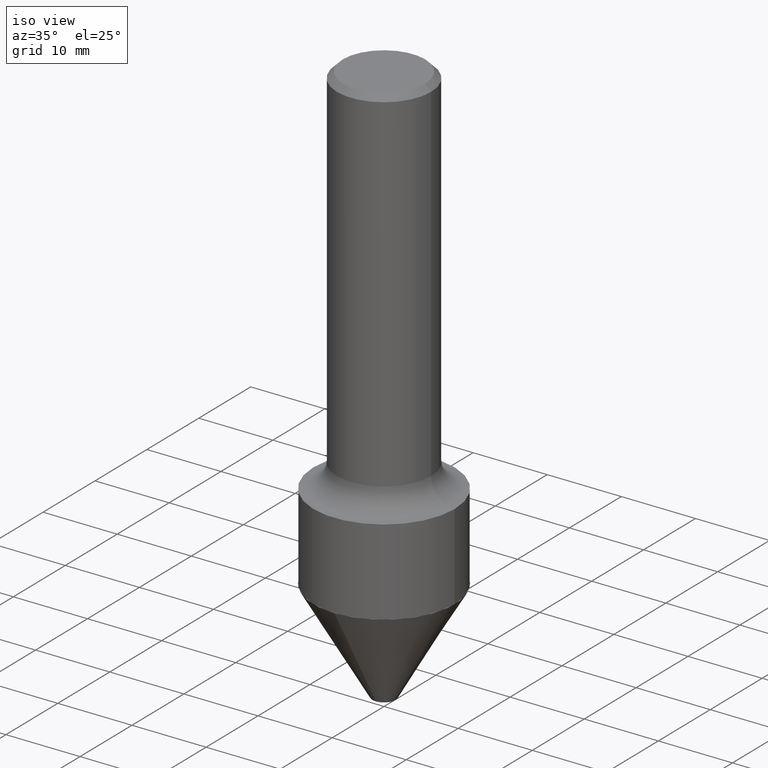
[diagram: clean part render]
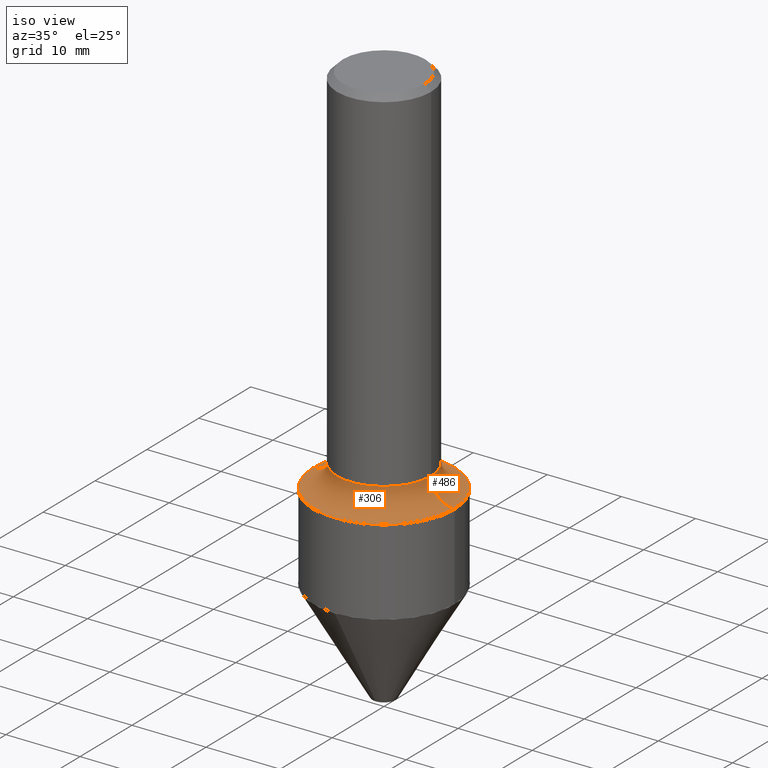
[diagram: same view with one multi-face feature highlighted, each face labeled with its STEP entity id]
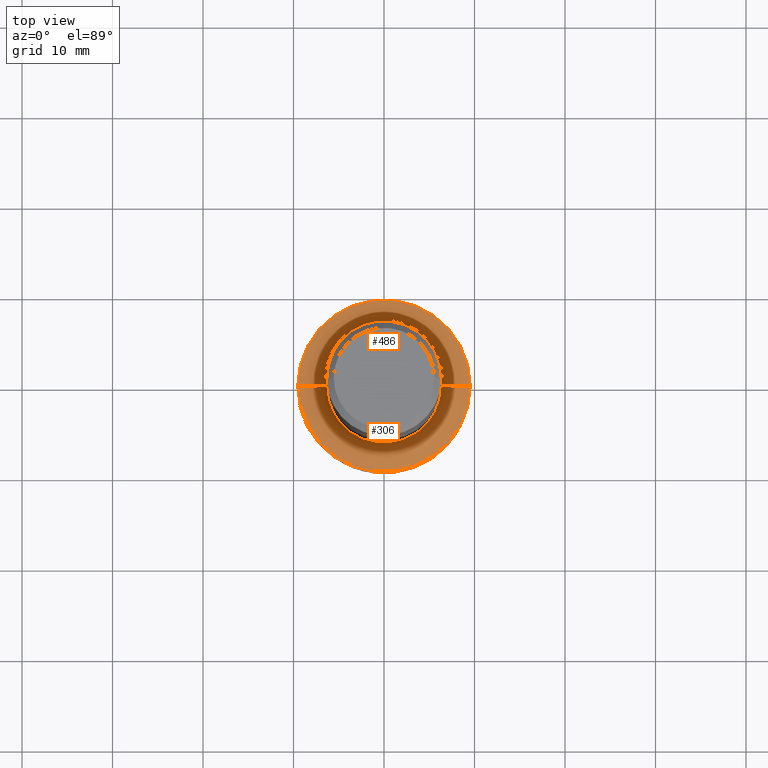
[diagram: same view with one multi-face feature highlighted, each face labeled with its STEP entity id]
A machine part, iso view. The highlighted faces form ONE feature: a constant-radius fillet chain: 2 tangent blend faces with common blend radius 3.175 mm. The faces share edges in the B-rep.
A second angle (top view) of the same feature is appended — it is thin or edge-on in the first view.
Their STEP definitions:
[1] entity #486 (Torus):
#11 = DIRECTION ( 'NONE',  ( 1.000000000000000000, -6.982962677686266711E-15, 4.883557194083112901E-29 ) ) ;
#14 = VERTEX_POINT ( 'NONE', #270 ) ;
#16 = DIRECTION ( 'NONE',  ( 7.105427357601001859E-15, 1.000000000000000000, -3.491481338843145583E-15 ) ) ;
#20 = DIRECTION ( 'NONE',  ( -1.000000000000000000, 7.105427357601001859E-15, 0.000000000000000000 ) ) ;
#42 = ORIENTED_EDGE ( 'NONE', *, *, #209, .T. ) ;
#43 = AXIS2_PLACEMENT_3D ( 'NONE', #138, #271, #350 ) ;
#57 = AXIS2_PLACEMENT_3D ( 'NONE', #471, #192, #11 ) ;
#71 = EDGE_CURVE ( 'NONE', #14, #511, #371, .T. ) ;
#82 = CIRCLE ( 'NONE', #43, 0.1249999999999998335 ) ;
#126 = VERTEX_POINT ( 'NONE', #335 ) ;
#134 = CIRCLE ( 'NONE', #327, 0.2500000000000002220 ) ;
#138 = CARTESIAN_POINT ( 'NONE',  ( 0.3750000000000000555, -9.165138514463248723E-15, -1.875000000000000444 ) ) ;
#152 = DIRECTION ( 'NONE',  ( -2.445468806185136597E-29, 3.491481338843145583E-15, 1.000000000000000000 ) ) ;
#186 = EDGE_LOOP ( 'NONE', ( #221, #281, #42, #387 ) ) ;
#187 = AXIS2_PLACEMENT_3D ( 'NONE', #222, #16, #20 ) ;
#190 = FACE_OUTER_BOUND ( 'NONE', #186, .T. ) ;
#192 = DIRECTION ( 'NONE',  ( -2.445468806185136597E-29, 3.491481338843145583E-15, 1.000000000000000000 ) ) ;
#203 = DIRECTION ( 'NONE',  ( 1.000000000000000000, -6.982962677686268288E-15, 0.000000000000000000 ) ) ;
#209 = EDGE_CURVE ( 'NONE', #307, #14, #82, .T. ) ;
#221 = ORIENTED_EDGE ( 'NONE', *, *, #356, .F. ) ;
#222 = CARTESIAN_POINT ( 'NONE',  ( -0.3750000000000000555, -3.881992251230523799E-15, -1.875000000000000444 ) ) ;
#253 = CARTESIAN_POINT ( 'NONE',  ( 4.585254011597131679E-29, -6.546527510330899496E-15, -1.875000000000000444 ) ) ;
#257 = DIRECTION ( 'NONE',  ( 1.000000000000000000, -6.982962677686266711E-15, 0.000000000000000000 ) ) ;
#270 = CARTESIAN_POINT ( 'NONE',  ( 0.3750000000000000555, -9.601573681818641971E-15, -2.000000000000000444 ) ) ;
#271 = DIRECTION ( 'NONE',  ( -6.982962677686266711E-15, -1.000000000000000000, 3.491481338843145583E-15 ) ) ;
#281 = ORIENTED_EDGE ( 'NONE', *, *, #404, .F. ) ;
#283 = AXIS2_PLACEMENT_3D ( 'NONE', #491, #152, #257 ) ;
#291 = TOROIDAL_SURFACE ( 'NONE', #57, 0.3750000000000000555, 0.1249999999999998473 ) ;
#297 = DIRECTION ( 'NONE',  ( -2.445468806185136597E-29, 3.491481338843145583E-15, 1.000000000000000000 ) ) ;
#307 = VERTEX_POINT ( 'NONE', #505 ) ;
#313 = CIRCLE ( 'NONE', #187, 0.1249999999999998335 ) ;
#327 = AXIS2_PLACEMENT_3D ( 'NONE', #253, #297, #203 ) ;
#335 = CARTESIAN_POINT ( 'NONE',  ( -0.2500000000000002776, -4.544299044758281461E-15, -1.875000000000000444 ) ) ;
#350 = DIRECTION ( 'NONE',  ( 1.000000000000000000, -6.982962677686272233E-15, 0.000000000000000000 ) ) ;
#356 = EDGE_CURVE ( 'NONE', #126, #511, #313, .T. ) ;
#371 = CIRCLE ( 'NONE', #283, 0.3750000000000000555 ) ;
#387 = ORIENTED_EDGE ( 'NONE', *, *, #71, .T. ) ;
#404 = EDGE_CURVE ( 'NONE', #307, #126, #134, .T. ) ;
#461 = CARTESIAN_POINT ( 'NONE',  ( -0.3750000000000000555, -4.318427418585916257E-15, -2.000000000000000444 ) ) ;
#471 = CARTESIAN_POINT ( 'NONE',  ( 4.585254011597131679E-29, -6.546527510330899496E-15, -1.875000000000000444 ) ) ;
#486 = ADVANCED_FACE ( 'NONE', ( #190 ), #291, .F. ) ;
#491 = CARTESIAN_POINT ( 'NONE',  ( 4.890937612370273754E-29, -6.982962677686291954E-15, -2.000000000000000444 ) ) ;
#505 = CARTESIAN_POINT ( 'NONE',  ( 0.2500000000000002220, -8.292268179752468540E-15, -1.875000000000000444 ) ) ;
#511 = VERTEX_POINT ( 'NONE', #461 ) ;
[2] entity #306 (Torus):
#14 = VERTEX_POINT ( 'NONE', #270 ) ;
#16 = DIRECTION ( 'NONE',  ( 7.105427357601001859E-15, 1.000000000000000000, -3.491481338843145583E-15 ) ) ;
#19 = EDGE_CURVE ( 'NONE', #511, #14, #169, .T. ) ;
#20 = DIRECTION ( 'NONE',  ( -1.000000000000000000, 7.105427357601001859E-15, 0.000000000000000000 ) ) ;
#43 = AXIS2_PLACEMENT_3D ( 'NONE', #138, #271, #350 ) ;
#64 = DIRECTION ( 'NONE',  ( -2.445468806185136597E-29, 3.491481338843145583E-15, 1.000000000000000000 ) ) ;
#66 = CIRCLE ( 'NONE', #512, 0.2500000000000002220 ) ;
#82 = CIRCLE ( 'NONE', #43, 0.1249999999999998335 ) ;
#87 = CARTESIAN_POINT ( 'NONE',  ( 4.585254011597131679E-29, -6.546527510330899496E-15, -1.875000000000000444 ) ) ;
#90 = ORIENTED_EDGE ( 'NONE', *, *, #398, .F. ) ;
#107 = AXIS2_PLACEMENT_3D ( 'NONE', #223, #64, #339 ) ;
#126 = VERTEX_POINT ( 'NONE', #335 ) ;
#133 = ORIENTED_EDGE ( 'NONE', *, *, #209, .F. ) ;
#135 = FACE_OUTER_BOUND ( 'NONE', #217, .T. ) ;
#138 = CARTESIAN_POINT ( 'NONE',  ( 0.3750000000000000555, -9.165138514463248723E-15, -1.875000000000000444 ) ) ;
#145 = ORIENTED_EDGE ( 'NONE', *, *, #19, .T. ) ;
#151 = DIRECTION ( 'NONE',  ( -2.445468806185136597E-29, 3.491481338843145583E-15, 1.000000000000000000 ) ) ;
#169 = CIRCLE ( 'NONE', #107, 0.3750000000000000555 ) ;
#187 = AXIS2_PLACEMENT_3D ( 'NONE', #222, #16, #20 ) ;
#209 = EDGE_CURVE ( 'NONE', #307, #14, #82, .T. ) ;
#217 = EDGE_LOOP ( 'NONE', ( #90, #262, #145, #133 ) ) ;
#222 = CARTESIAN_POINT ( 'NONE',  ( -0.3750000000000000555, -3.881992251230523799E-15, -1.875000000000000444 ) ) ;
#223 = CARTESIAN_POINT ( 'NONE',  ( 4.890937612370273754E-29, -6.982962677686291954E-15, -2.000000000000000444 ) ) ;
#236 = AXIS2_PLACEMENT_3D ( 'NONE', #429, #317, #312 ) ;
#262 = ORIENTED_EDGE ( 'NONE', *, *, #356, .T. ) ;
#270 = CARTESIAN_POINT ( 'NONE',  ( 0.3750000000000000555, -9.601573681818641971E-15, -2.000000000000000444 ) ) ;
#271 = DIRECTION ( 'NONE',  ( -6.982962677686266711E-15, -1.000000000000000000, 3.491481338843145583E-15 ) ) ;
#306 = ADVANCED_FACE ( 'NONE', ( #135 ), #410, .F. ) ;
#307 = VERTEX_POINT ( 'NONE', #505 ) ;
#312 = DIRECTION ( 'NONE',  ( 1.000000000000000000, -6.982962677686266711E-15, 4.883557194083112901E-29 ) ) ;
#313 = CIRCLE ( 'NONE', #187, 0.1249999999999998335 ) ;
#317 = DIRECTION ( 'NONE',  ( -2.445468806185136597E-29, 3.491481338843145583E-15, 1.000000000000000000 ) ) ;
#335 = CARTESIAN_POINT ( 'NONE',  ( -0.2500000000000002776, -4.544299044758281461E-15, -1.875000000000000444 ) ) ;
#336 = DIRECTION ( 'NONE',  ( 1.000000000000000000, -6.982962677686268288E-15, 0.000000000000000000 ) ) ;
#339 = DIRECTION ( 'NONE',  ( 1.000000000000000000, -6.982962677686266711E-15, 0.000000000000000000 ) ) ;
#350 = DIRECTION ( 'NONE',  ( 1.000000000000000000, -6.982962677686272233E-15, 0.000000000000000000 ) ) ;
#356 = EDGE_CURVE ( 'NONE', #126, #511, #313, .T. ) ;
#398 = EDGE_CURVE ( 'NONE', #126, #307, #66, .T. ) ;
#410 = TOROIDAL_SURFACE ( 'NONE', #236, 0.3750000000000000555, 0.1249999999999998473 ) ;
#429 = CARTESIAN_POINT ( 'NONE',  ( 4.585254011597131679E-29, -6.546527510330899496E-15, -1.875000000000000444 ) ) ;
#461 = CARTESIAN_POINT ( 'NONE',  ( -0.3750000000000000555, -4.318427418585916257E-15, -2.000000000000000444 ) ) ;
#505 = CARTESIAN_POINT ( 'NONE',  ( 0.2500000000000002220, -8.292268179752468540E-15, -1.875000000000000444 ) ) ;
#511 = VERTEX_POINT ( 'NONE', #461 ) ;
#512 = AXIS2_PLACEMENT_3D ( 'NONE', #87, #151, #336 ) ;